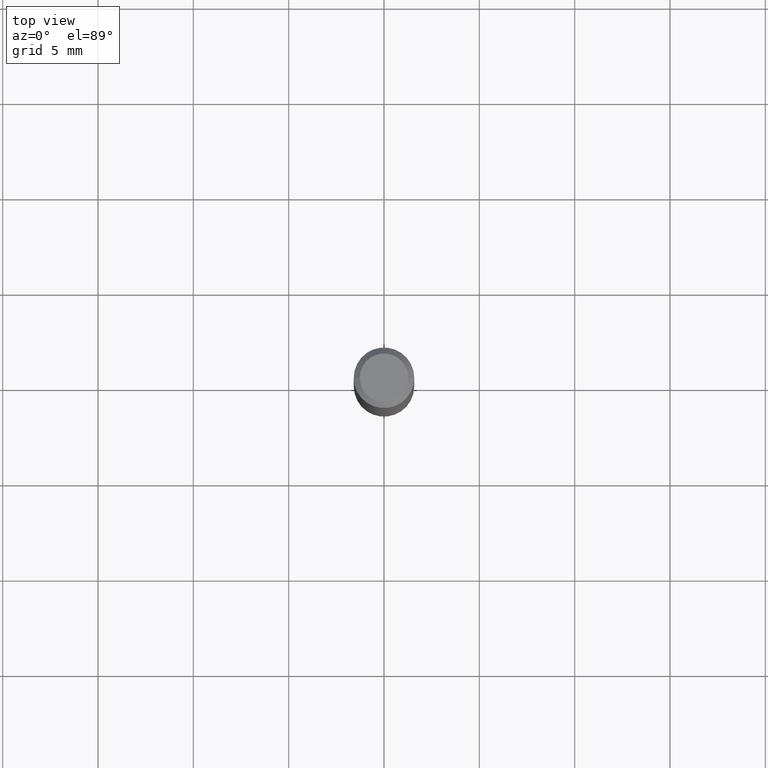
[diagram: clean part render]
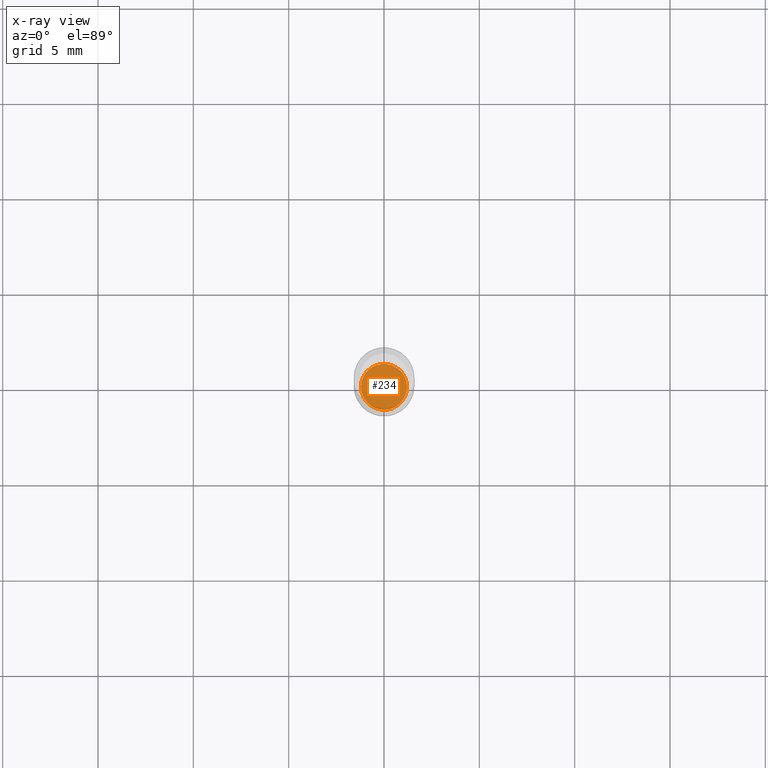
[diagram: x-ray — body ghosted, one internal face saturated and labeled with its STEP entity id]
A machine part, top view, then the same camera in x-ray: the body is ghosted and one INTERNAL B-rep face — a face not visible from any outside direction — is saturated and labeled: STEP entity #234.
In plain terms, the highlighted planar face has unit normal (-0, 0, 1).
Its self-contained STEP definition (entity closure, byte-faithful):
#30 = ORIENTED_EDGE ( 'NONE', *, *, #319, .F. ) ;
#50 = DIRECTION ( 'NONE',  ( 1.000000000000000000, -6.982962677686265922E-15, 4.876176775795935793E-29 ) ) ;
#53 = AXIS2_PLACEMENT_3D ( 'NONE', #245, #215, #174 ) ;
#123 = CARTESIAN_POINT ( 'NONE',  ( 0.04749999999999999362, -4.172320199917558401E-15, -1.100000000000000089 ) ) ;
#137 = EDGE_LOOP ( 'NONE', ( #159, #30 ) ) ;
#153 = AXIS2_PLACEMENT_3D ( 'NONE', #435, #362, #50 ) ;
#159 = ORIENTED_EDGE ( 'NONE', *, *, #299, .F. ) ;
#174 = DIRECTION ( 'NONE',  ( 1.000000000000000000, -6.982962677686273021E-15, 0.000000000000000000 ) ) ;
#203 = CARTESIAN_POINT ( 'NONE',  ( 2.690015686803650369E-29, -3.840629472727460101E-15, -1.100000000000000089 ) ) ;
#215 = DIRECTION ( 'NONE',  ( -2.445468806185136597E-29, 3.491481338843145583E-15, 1.000000000000000000 ) ) ;
#234 = ADVANCED_FACE ( 'NONE', ( #320 ), #314, .F. ) ;
#245 = CARTESIAN_POINT ( 'NONE',  ( 2.690015686803650369E-29, -3.840629472727460101E-15, -1.100000000000000089 ) ) ;
#277 = DIRECTION ( 'NONE',  ( 1.000000000000000000, -6.982962677686273021E-15, 0.000000000000000000 ) ) ;
#299 = EDGE_CURVE ( 'NONE', #308, #312, #487, .T. ) ;
#308 = VERTEX_POINT ( 'NONE', #123 ) ;
#312 = VERTEX_POINT ( 'NONE', #404 ) ;
#314 = PLANE ( 'NONE',  #153 ) ;
#319 = EDGE_CURVE ( 'NONE', #312, #308, #429, .T. ) ;
#320 = FACE_OUTER_BOUND ( 'NONE', #137, .T. ) ;
#354 = DIRECTION ( 'NONE',  ( -2.445468806185136597E-29, 3.491481338843145583E-15, 1.000000000000000000 ) ) ;
#362 = DIRECTION ( 'NONE',  ( -2.438088387897960049E-29, 3.491481338843145188E-15, 1.000000000000000000 ) ) ;
#404 = CARTESIAN_POINT ( 'NONE',  ( -0.04749999999999999362, -3.500472446067301407E-15, -1.100000000000000089 ) ) ;
#407 = AXIS2_PLACEMENT_3D ( 'NONE', #203, #354, #277 ) ;
#429 = CIRCLE ( 'NONE', #407, 0.04749999999999999362 ) ;
#435 = CARTESIAN_POINT ( 'NONE',  ( 2.690015686803650369E-29, -3.840629472727460101E-15, -1.100000000000000089 ) ) ;
#487 = CIRCLE ( 'NONE', #53, 0.04749999999999999362 ) ;